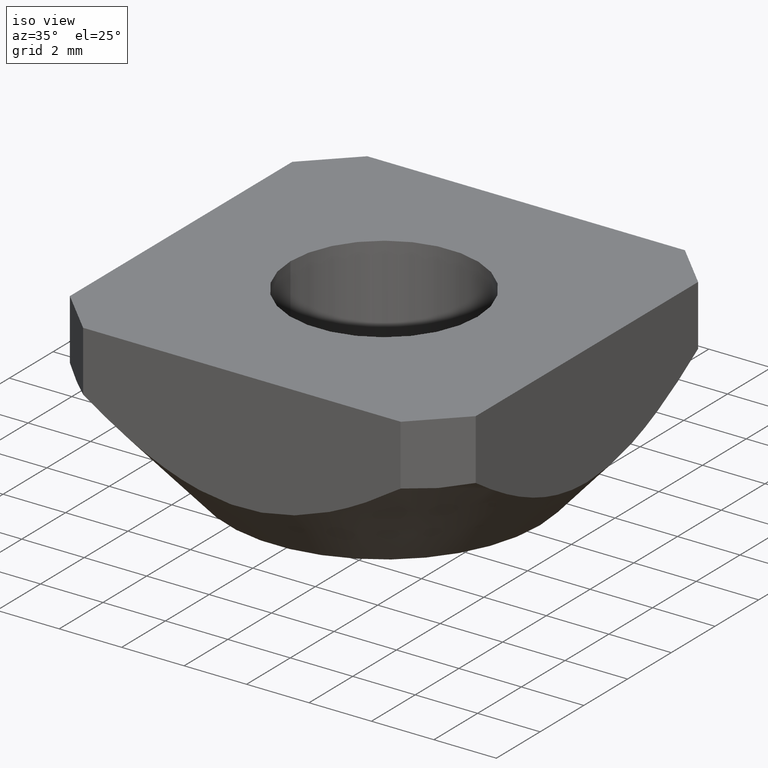
[diagram: clean part render]
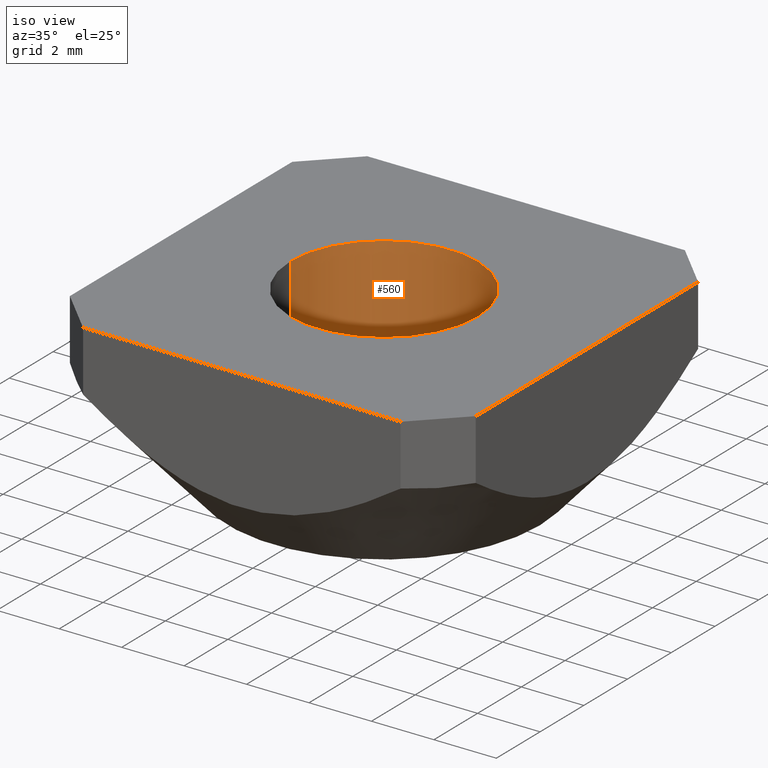
[diagram: same view with one face highlighted and labeled with its STEP entity id]
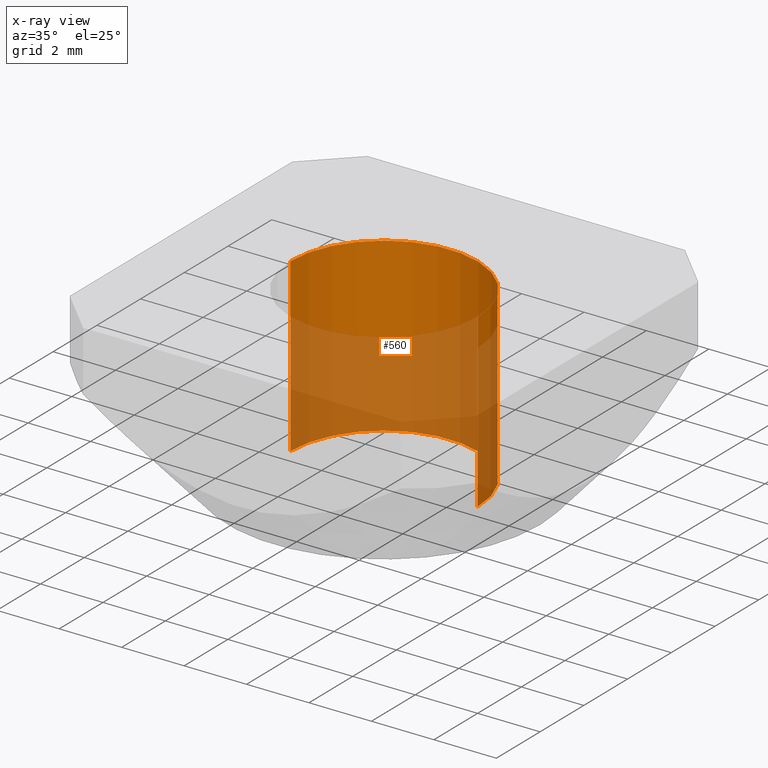
[diagram: x-ray of the same camera — body ghosted, the highlighted face saturated]
A machine part, iso view. The second image highlights one B-rep face of the part: STEP entity #560.
The next image is the same camera in x-ray: the body ghosted, the highlighted face saturated — about 57% of this face is hidden behind the body in this view.
In plain terms, the highlighted cylindrical surface (partial cylindrical patch) has radius 3 mm, axis along (0, 0, -1).
Its self-contained STEP definition (entity closure, byte-faithful):
#3 = EDGE_CURVE ( 'NONE', #331, #237, #427, .T. ) ;
#24 = VERTEX_POINT ( 'NONE', #276 ) ;
#36 = EDGE_LOOP ( 'NONE', ( #283, #43, #535, #274 ) ) ;
#41 = CYLINDRICAL_SURFACE ( 'NONE', #494, 3.000000000000000000 ) ;
#43 = ORIENTED_EDGE ( 'NONE', *, *, #420, .F. ) ;
#53 = DIRECTION ( 'NONE',  ( 0.0000000000000000000, 0.0000000000000000000, -1.000000000000000000 ) ) ;
#85 = CARTESIAN_POINT ( 'NONE',  ( -3.000000000000000000, 0.0000000000000000000, 0.0000000000000000000 ) ) ;
#156 = CARTESIAN_POINT ( 'NONE',  ( 3.000000000000000000, 3.673940397442059868E-16, -5.500000000000000000 ) ) ;
#178 = DIRECTION ( 'NONE',  ( 0.0000000000000000000, 0.0000000000000000000, -1.000000000000000000 ) ) ;
#181 = DIRECTION ( 'NONE',  ( -1.000000000000000000, 0.0000000000000000000, 0.0000000000000000000 ) ) ;
#221 = CARTESIAN_POINT ( 'NONE',  ( 0.0000000000000000000, 0.0000000000000000000, 0.0000000000000000000 ) ) ;
#237 = VERTEX_POINT ( 'NONE', #156 ) ;
#261 = DIRECTION ( 'NONE',  ( -1.000000000000000000, 0.0000000000000000000, 0.0000000000000000000 ) ) ;
#263 = CARTESIAN_POINT ( 'NONE',  ( 0.0000000000000000000, 0.0000000000000000000, -5.500000000000000000 ) ) ;
#274 = ORIENTED_EDGE ( 'NONE', *, *, #293, .F. ) ;
#276 = CARTESIAN_POINT ( 'NONE',  ( -3.000000000000000000, 0.0000000000000000000, -5.500000000000000000 ) ) ;
#283 = ORIENTED_EDGE ( 'NONE', *, *, #3, .F. ) ;
#293 = EDGE_CURVE ( 'NONE', #237, #24, #449, .T. ) ;
#296 = VECTOR ( 'NONE', #53, 1000.000000000000000 ) ;
#318 = CARTESIAN_POINT ( 'NONE',  ( 0.0000000000000000000, 0.0000000000000000000, 0.0000000000000000000 ) ) ;
#321 = FACE_OUTER_BOUND ( 'NONE', #36, .T. ) ;
#331 = VERTEX_POINT ( 'NONE', #394 ) ;
#367 = DIRECTION ( 'NONE',  ( 0.0000000000000000000, 0.0000000000000000000, -1.000000000000000000 ) ) ;
#382 = VERTEX_POINT ( 'NONE', #85 ) ;
#386 = AXIS2_PLACEMENT_3D ( 'NONE', #263, #522, #261 ) ;
#394 = CARTESIAN_POINT ( 'NONE',  ( 3.000000000000000000, 3.673940397442059868E-16, 0.0000000000000000000 ) ) ;
#397 = CARTESIAN_POINT ( 'NONE',  ( -3.000000000000000000, 0.0000000000000000000, 0.0000000000000000000 ) ) ;
#398 = DIRECTION ( 'NONE',  ( -1.000000000000000000, 0.0000000000000000000, 0.0000000000000000000 ) ) ;
#420 = EDGE_CURVE ( 'NONE', #382, #331, #556, .T. ) ;
#427 = LINE ( 'NONE', #447, #438 ) ;
#437 = LINE ( 'NONE', #397, #296 ) ;
#438 = VECTOR ( 'NONE', #178, 1000.000000000000000 ) ;
#447 = CARTESIAN_POINT ( 'NONE',  ( 3.000000000000000000, 3.673940397442059868E-16, 0.0000000000000000000 ) ) ;
#449 = CIRCLE ( 'NONE', #386, 3.000000000000000000 ) ;
#477 = AXIS2_PLACEMENT_3D ( 'NONE', #221, #367, #398 ) ;
#494 = AXIS2_PLACEMENT_3D ( 'NONE', #318, #501, #181 ) ;
#501 = DIRECTION ( 'NONE',  ( 0.0000000000000000000, 0.0000000000000000000, -1.000000000000000000 ) ) ;
#519 = EDGE_CURVE ( 'NONE', #382, #24, #437, .T. ) ;
#522 = DIRECTION ( 'NONE',  ( -0.0000000000000000000, -0.0000000000000000000, 1.000000000000000000 ) ) ;
#535 = ORIENTED_EDGE ( 'NONE', *, *, #519, .T. ) ;
#556 = CIRCLE ( 'NONE', #477, 3.000000000000000000 ) ;
#560 = ADVANCED_FACE ( 'NONE', ( #321 ), #41, .F. ) ;